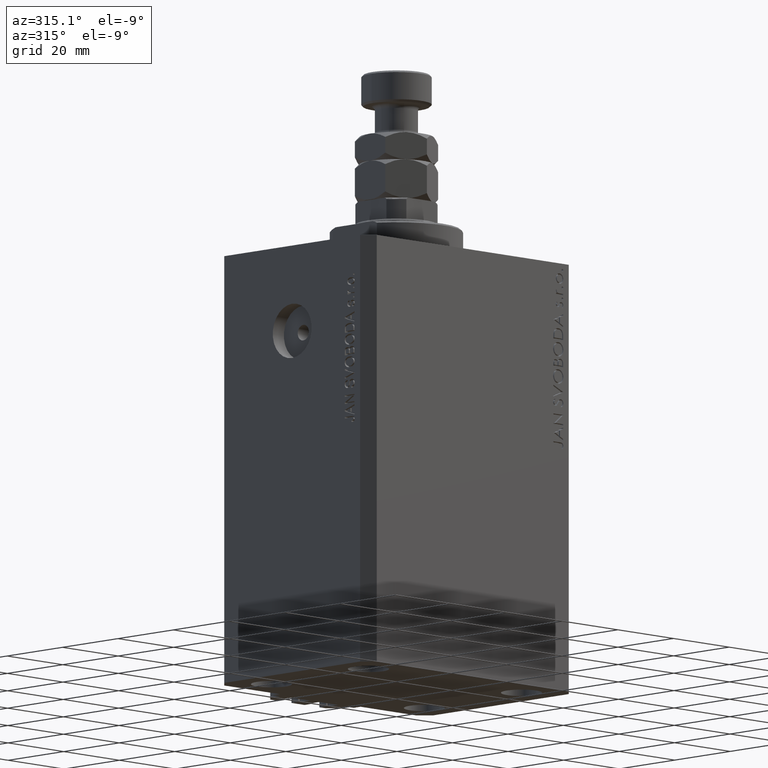
[diagram: clean part render]
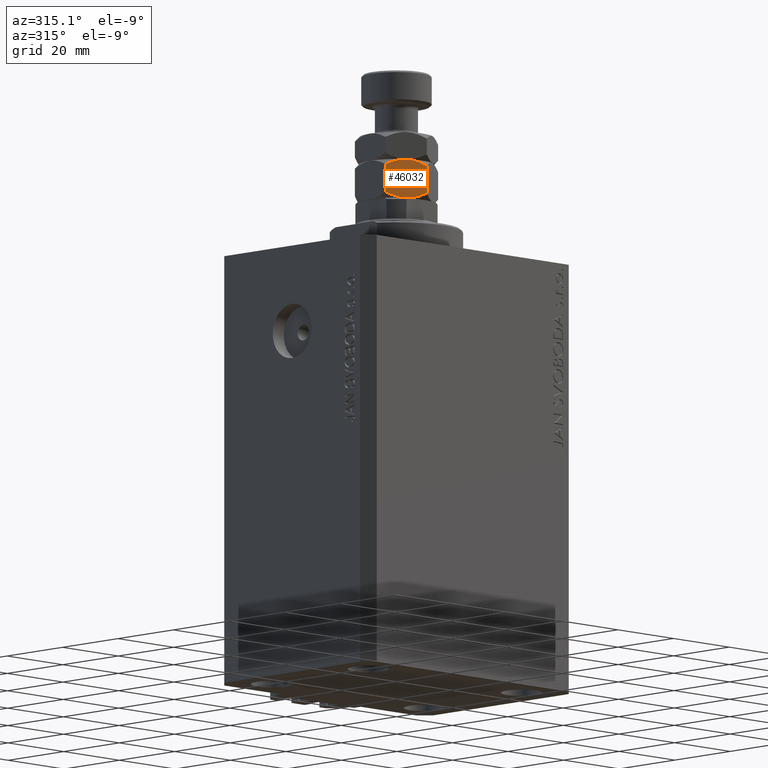
[diagram: same view with one face highlighted and labeled with its STEP entity id]
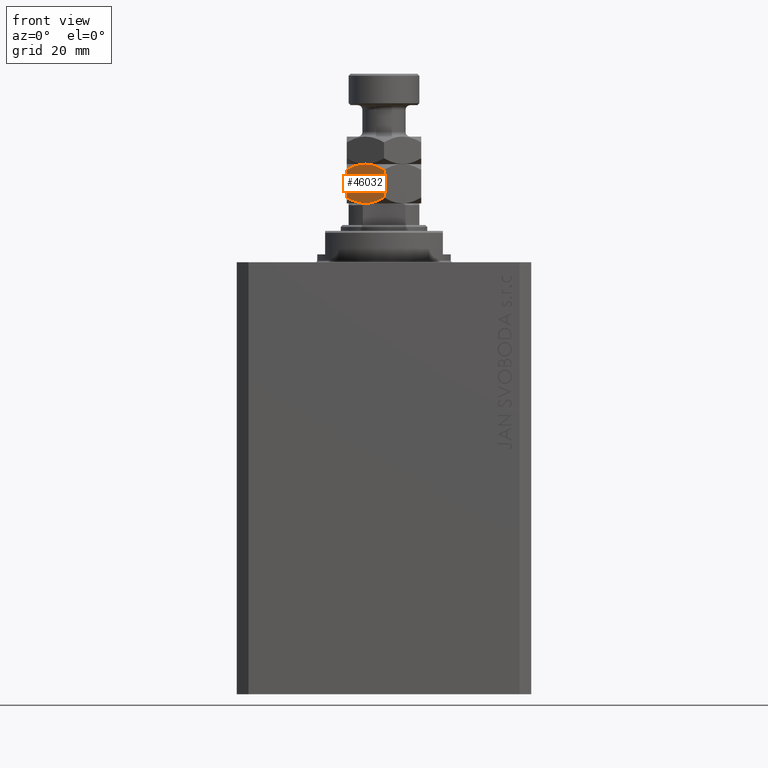
[diagram: same view with one face highlighted and labeled with its STEP entity id]
A machine part, auxiliary view. The second image highlights one B-rep face of the part: STEP entity #46032.
A second angle (front view) of the same face is appended — the face is thin or edge-on in the first view.
In plain terms, the highlighted planar face has unit normal (0.5, 0.866, 0).
Its self-contained STEP definition (entity closure, byte-faithful):
#547 = B_SPLINE_CURVE_WITH_KNOTS ( 'NONE', 3,
 ( #29762, #32487, #36670, #40632, #10724, #24823, #18389, #6767 ),
 .UNSPECIFIED., .F., .F.,
 ( 4, 2, 2, 4 ),
 ( 2.544312669948822529E-07, 0.002843014744722344167, 0.004264394901450020009, 0.005685775058177695851 ),
 .UNSPECIFIED. ) ;
#2003 = EDGE_CURVE ( 'NONE', #7498, #28964, #36733, .T. ) ;
#4289 = CARTESIAN_POINT ( 'NONE',  ( -3.035766082959412415E-15, -10.96965511460288667, 10.00000000000000000 ) ) ;
#4495 = ORIENTED_EDGE ( 'NONE', *, *, #46626, .F. ) ;
#4785 = VERTEX_POINT ( 'NONE', #29606 ) ;
#4941 = CARTESIAN_POINT ( 'NONE',  ( -9.500000000000000000, -5.484827557301445999, 8.530344885397115107 ) ) ;
#5503 = ORIENTED_EDGE ( 'NONE', *, *, #33711, .F. ) ;
#5793 = CARTESIAN_POINT ( 'NONE',  ( -4.333978297711725602, -8.467431577757036365, 9.136662057716388954E-16 ) ) ;
#6391 = PLANE ( 'NONE',  #18659 ) ;
#6767 = CARTESIAN_POINT ( 'NONE',  ( -4.749999999999998224, -8.227241335952168555, 10.00000000000000000 ) ) ;
#7070 = VECTOR ( 'NONE', #30510, 1000.000000000000000 ) ;
#7498 = VERTEX_POINT ( 'NONE', #33775 ) ;
#9012 = CARTESIAN_POINT ( 'NONE',  ( -2.946964139499808652E-15, -10.96965511460288667, 1.469655114602881563 ) ) ;
#9449 = CARTESIAN_POINT ( 'NONE',  ( -6.388382028668172730, -7.281321030665154126, 0.1458756157754690086 ) ) ;
#9497 = CARTESIAN_POINT ( 'NONE',  ( -4.749999999999998224, -8.227241335952168555, 0.000000000000000000 ) ) ;
#10724 = CARTESIAN_POINT ( 'NONE',  ( -6.408273631871771236, -7.269836608200942685, 9.820258145287965590 ) ) ;
#12144 = VECTOR ( 'NONE', #39436, 1000.000000000000000 ) ;
#12282 = CARTESIAN_POINT ( 'NONE',  ( -3.001642536556159024E-15, -10.96965511460288667, 8.530344885397118659 ) ) ;
#13709 = CARTESIAN_POINT ( 'NONE',  ( -2.690254945947328391, -9.416435697371479563, 0.2834621384311885595 ) ) ;
#15087 = CARTESIAN_POINT ( 'NONE',  ( -3.001642536556159024E-15, -10.96965511460288667, 8.530344885397118659 ) ) ;
#15531 = CARTESIAN_POINT ( 'NONE',  ( -3.111617971331826382, -9.173161641239186537, 9.854124384224533628 ) ) ;
#17664 = B_SPLINE_CURVE_WITH_KNOTS ( 'NONE', 3,
 ( #9012, #46831, #28543, #13709, #21370, #39907, #5793, #9497 ),
 .UNSPECIFIED., .F., .F.,
 ( 4, 2, 2, 4 ),
 ( 2.544312669954764994E-07, 0.002843014744722341131, 0.004264394901450013937, 0.005685775058177687177 ),
 .UNSPECIFIED. ) ;
#17784 = DIRECTION ( 'NONE',  ( 0.4999999999999998890, 0.8660254037844387076, -0.000000000000000000 ) ) ;
#18200 = ORIENTED_EDGE ( 'NONE', *, *, #2003, .F. ) ;
#18389 = CARTESIAN_POINT ( 'NONE',  ( -5.166021702288271733, -7.987051094147306074, 10.00000000000000000 ) ) ;
#18417 = LINE ( 'NONE', #4289, #7070 ) ;
#18659 = AXIS2_PLACEMENT_3D ( 'NONE', #21476, #17784, #43488 ) ;
#19227 = CARTESIAN_POINT ( 'NONE',  ( -3.923784602134047894, -8.704257018318688921, 10.00000000000000178 ) ) ;
#20754 = ORIENTED_EDGE ( 'NONE', *, *, #26251, .F. ) ;
#20833 = CARTESIAN_POINT ( 'NONE',  ( -9.500000000000000000, -5.484827557301445999, 1.469655114602884893 ) ) ;
#21370 = CARTESIAN_POINT ( 'NONE',  ( -3.091726368128225211, -9.184646063703393537, 0.1797418547120354371 ) ) ;
#21476 = CARTESIAN_POINT ( 'NONE',  ( -9.500000000000000000, -5.484827557301445999, 10.00000000000000000 ) ) ;
#23349 = EDGE_CURVE ( 'NONE', #27317, #44704, #18417, .T. ) ;
#24267 = ORIENTED_EDGE ( 'NONE', *, *, #36921, .T. ) ;
#24823 = CARTESIAN_POINT ( 'NONE',  ( -5.588267949974986770, -7.743267109381074320, 9.962294231267001976 ) ) ;
#25126 = EDGE_LOOP ( 'NONE', ( #4495, #37085, #5503, #20754, #24267, #18200 ) ) ;
#26251 = EDGE_CURVE ( 'NONE', #29330, #4785, #547, .T. ) ;
#27317 = VERTEX_POINT ( 'NONE', #15087 ) ;
#28543 = CARTESIAN_POINT ( 'NONE',  ( -1.506594318812384703, -10.09982247907699993, 0.6741748824712766597 ) ) ;
#28964 = VERTEX_POINT ( 'NONE', #38152 ) ;
#29330 = VERTEX_POINT ( 'NONE', #4941 ) ;
#29606 = CARTESIAN_POINT ( 'NONE',  ( -4.749999999999998224, -8.227241335952168555, 10.00000000000000000 ) ) ;
#29762 = CARTESIAN_POINT ( 'NONE',  ( -9.500000000000000000, -5.484827557301445999, 8.530344885397115107 ) ) ;
#30510 = DIRECTION ( 'NONE',  ( -0.000000000000000000, -0.000000000000000000, -1.000000000000000000 ) ) ;
#30589 = CARTESIAN_POINT ( 'NONE',  ( -1.509821400858457840, -10.09795932238900029, 9.328363030548734613 ) ) ;
#31535 = LINE ( 'NONE', #35246, #12144 ) ;
#32212 = CARTESIAN_POINT ( 'NONE',  ( -4.749999999999998224, -8.227241335952168555, 0.000000000000000000 ) ) ;
#32487 = CARTESIAN_POINT ( 'NONE',  ( -8.755131854751340370, -5.914877381471537632, 8.960394709567209404 ) ) ;
#33711 = EDGE_CURVE ( 'NONE', #4785, #27317, #44469, .T. ) ;
#33775 = CARTESIAN_POINT ( 'NONE',  ( -4.749999999999998224, -8.227241335952168555, 0.000000000000000000 ) ) ;
#35246 = CARTESIAN_POINT ( 'NONE',  ( -9.500000000000000000, -5.484827557301445999, 10.00000000000000000 ) ) ;
#36543 = FACE_OUTER_BOUND ( 'NONE', #25126, .T. ) ;
#36670 = CARTESIAN_POINT ( 'NONE',  ( -7.993405681187616629, -6.354660192827335408, 9.325825117528722785 ) ) ;
#36733 = B_SPLINE_CURVE_WITH_KNOTS ( 'NONE', 3,
 ( #32212, #39364, #9449, #43820, #47276, #20833 ),
 .UNSPECIFIED., .F., .F.,
 ( 4, 2, 4 ),
 ( 0.005685775058177687177, 0.008508623398180320194, 0.01133147173818295321 ),
 .UNSPECIFIED. ) ;
#36921 = EDGE_CURVE ( 'NONE', #29330, #28964, #31535, .T. ) ;
#37085 = ORIENTED_EDGE ( 'NONE', *, *, #23349, .F. ) ;
#37391 = CARTESIAN_POINT ( 'NONE',  ( -2.946964139499808652E-15, -10.96965511460288667, 1.469655114602881563 ) ) ;
#38152 = CARTESIAN_POINT ( 'NONE',  ( -9.500000000000000000, -5.484827557301445999, 1.469655114602884893 ) ) ;
#39364 = CARTESIAN_POINT ( 'NONE',  ( -5.576215397865947665, -7.750225653585648189, 8.690558038829119507E-16 ) ) ;
#39436 = DIRECTION ( 'NONE',  ( -0.000000000000000000, -0.000000000000000000, -1.000000000000000000 ) ) ;
#39907 = CARTESIAN_POINT ( 'NONE',  ( -3.911732050025008789, -8.711215562523268119, 0.03770576873300111181 ) ) ;
#40632 = CARTESIAN_POINT ( 'NONE',  ( -6.809745054052672053, -7.038046974532858435, 9.716537861568809831 ) ) ;
#43488 = DIRECTION ( 'NONE',  ( -0.8660254037844387076, 0.4999999999999998890, 0.000000000000000000 ) ) ;
#43820 = CARTESIAN_POINT ( 'NONE',  ( -7.990178599141542826, -6.356523349515333265, 0.6716369694512676070 ) ) ;
#44469 = B_SPLINE_CURVE_WITH_KNOTS ( 'NONE', 3,
 ( #46146, #19227, #15531, #30589, #45661, #12282 ),
 .UNSPECIFIED., .F., .F.,
 ( 4, 2, 4 ),
 ( 0.005685775058177695851, 0.008508623398180325398, 0.01133147173818295494 ),
 .UNSPECIFIED. ) ;
#44704 = VERTEX_POINT ( 'NONE', #37391 ) ;
#45661 = CARTESIAN_POINT ( 'NONE',  ( -0.7440058743609659908, -10.54010312276191996, 8.959896877238168855 ) ) ;
#46032 = ADVANCED_FACE ( 'NONE', ( #36543 ), #6391, .F. ) ;
#46146 = CARTESIAN_POINT ( 'NONE',  ( -4.749999999999998224, -8.227241335952168555, 10.00000000000000000 ) ) ;
#46626 = EDGE_CURVE ( 'NONE', #44704, #7498, #17664, .T. ) ;
#46831 = CARTESIAN_POINT ( 'NONE',  ( -0.7448681452486625165, -10.53960529043279770, 1.039605290432793705 ) ) ;
#47276 = CARTESIAN_POINT ( 'NONE',  ( -8.755994125639036341, -5.914379549142410930, 1.040103122761829813 ) ) ;